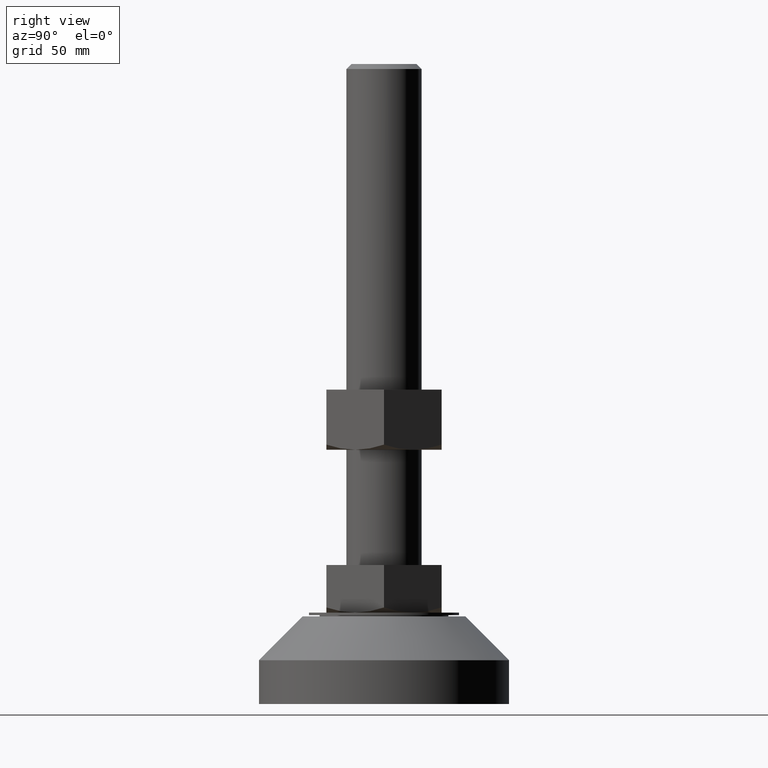
[diagram: clean part render]
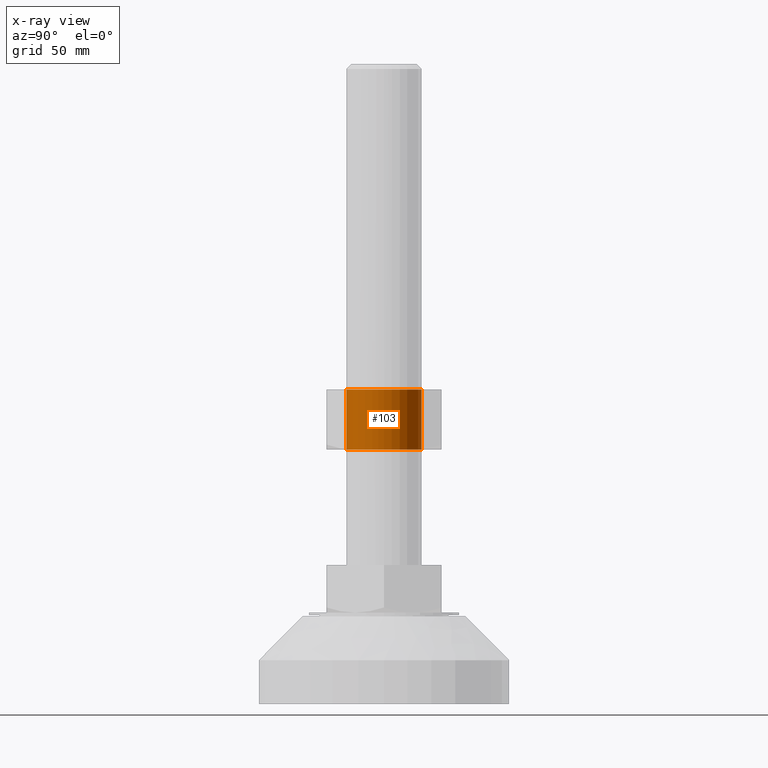
[diagram: x-ray — body ghosted, one internal face saturated and labeled with its STEP entity id]
A machine part, right view, then the same camera in x-ray: the body is ghosted and one INTERNAL B-rep face — a face not visible from any outside direction — is saturated and labeled: STEP entity #103.
In plain terms, the highlighted face is a freeform B-spline surface patch.
Its self-contained STEP definition (entity closure, byte-faithful):
#5=CARTESIAN_POINT('',(-0.915728093022528,-14.972021976327889,100.900000000000010));
#6=CARTESIAN_POINT('',(14.056293883305472,-15.887750069350739,100.900000000000010));
#7=CARTESIAN_POINT('',(14.972021976328330,-0.915728093022741,100.900000000000010));
#8=CARTESIAN_POINT('',(15.887750069351180,14.056293883305258,100.900000000000010));
#9=CARTESIAN_POINT('',(0.915728093023182,14.972021976328110,100.900000000000010));
#10=CARTESIAN_POINT('',(-0.915728093022528,-14.972021976327889,126.114999999999990));
#11=CARTESIAN_POINT('',(14.056293883305472,-15.887750069350739,126.115000000000010));
#12=CARTESIAN_POINT('',(14.972021976328330,-0.915728093022741,126.114999999999990));
#13=CARTESIAN_POINT('',(15.887750069351180,14.056293883305258,126.115000000000010));
#14=CARTESIAN_POINT('',(0.915728093023182,14.972021976328110,126.114999999999990));
#22=(BOUNDED_SURFACE()B_SPLINE_SURFACE(2,1,((#5,#10),(#6,#11),(#7,#12),(#8,#13),(#9,#14)),.UNSPECIFIED.,.F.,.F.,.U.)B_SPLINE_SURFACE_WITH_KNOTS((3,2,3),(2,2),(0.0,24.852813742385688,49.705627484771377),(0.0,25.215000000000021),.UNSPECIFIED.)GEOMETRIC_REPRESENTATION_ITEM()RATIONAL_B_SPLINE_SURFACE(((1.0,1.0),(0.707106781186548,0.707106781186548),(1.0,1.0),(0.707106781186548,0.707106781186548),(1.0,1.0)))REPRESENTATION_ITEM('')SURFACE());
#23=CARTESIAN_POINT('',(-0.915728093184179,-14.972021976318000,125.500000000000000));
#24=VERTEX_POINT('',#23);
#25=CARTESIAN_POINT('',(15.000000000000330,1.136868E-013,125.500000000000000));
#26=VERTEX_POINT('',#25);
#27=CARTESIAN_POINT('',(-0.915728093184178,-14.972021976318002,125.500000000000070));
#28=CARTESIAN_POINT('',(-0.458291449559558,-14.999999999999890,125.500000000000000));
#29=CARTESIAN_POINT('',(3.268497E-013,-14.999999999999890,125.500000000000000));
#30=CARTESIAN_POINT('',(15.000000000000323,-14.999999999999885,125.500000000000000));
#31=CARTESIAN_POINT('',(15.000000000000330,1.136868E-013,125.500000000000000));
#39=(BOUNDED_CURVE()B_SPLINE_CURVE(2,(#27,#28,#29,#30,#31),.UNSPECIFIED.,.F.,.U.)B_SPLINE_CURVE_WITH_KNOTS((3,2,3),(0.239332962240105,0.250000000000000,0.500000000000000),.UNSPECIFIED.)CURVE()GEOMETRIC_REPRESENTATION_ITEM()RATIONAL_B_SPLINE_CURVE((0.976072041669209,0.987502787901199,1.0,0.707106781186547,1.0))REPRESENTATION_ITEM(''));
#40=EDGE_CURVE('',#24,#26,#39,.T.);
#41=ORIENTED_EDGE('',*,*,#40,.T.);
#42=CARTESIAN_POINT('',(0.915728093184836,14.972021976318230,125.500000000000000));
#43=VERTEX_POINT('',#42);
#44=CARTESIAN_POINT('',(15.000000000000330,1.136868E-013,125.500000000000000));
#45=CARTESIAN_POINT('',(15.000000000000329,14.110591003432894,125.500000000000000));
#46=CARTESIAN_POINT('',(0.915728093184839,14.972021976318231,125.500000000000000));
#54=(BOUNDED_CURVE()B_SPLINE_CURVE(2,(#44,#45,#46),.UNSPECIFIED.,.F.,.U.)B_SPLINE_CURVE_WITH_KNOTS((3,3),(0.500000000000000,0.739332962240105),.UNSPECIFIED.)CURVE()GEOMETRIC_REPRESENTATION_ITEM()RATIONAL_B_SPLINE_CURVE((1.0,0.719603993285348,0.976072041669209))REPRESENTATION_ITEM(''));
#55=EDGE_CURVE('',#26,#43,#54,.T.);
#56=ORIENTED_EDGE('',*,*,#55,.T.);
#57=CARTESIAN_POINT('',(0.915728093184831,14.972021976318230,101.500000000000000));
#58=VERTEX_POINT('',#57);
#59=CARTESIAN_POINT('',(0.915728093184831,14.972021976318230,101.500000000000000));
#60=CARTESIAN_POINT('',(0.915728093184836,14.972021976318230,125.500000000000000));
#61=QUASI_UNIFORM_CURVE('',1,(#59,#60),.UNSPECIFIED.,.F.,.U.);
#62=EDGE_CURVE('',#58,#43,#61,.T.);
#63=ORIENTED_EDGE('',*,*,#62,.F.);
#64=CARTESIAN_POINT('',(15.000000000000330,1.136868E-013,101.500000000000000));
#65=VERTEX_POINT('',#64);
#66=CARTESIAN_POINT('',(15.000000000000330,1.136868E-013,101.500000000000000));
#67=CARTESIAN_POINT('',(15.000000000000330,14.110591003432909,101.500000000000000));
#68=CARTESIAN_POINT('',(0.915728093184829,14.972021976318240,101.500000000000010));
#76=(BOUNDED_CURVE()B_SPLINE_CURVE(2,(#66,#67,#68),.UNSPECIFIED.,.F.,.U.)B_SPLINE_CURVE_WITH_KNOTS((3,3),(0.500000000000000,0.739332962240105),.UNSPECIFIED.)CURVE()GEOMETRIC_REPRESENTATION_ITEM()RATIONAL_B_SPLINE_CURVE((1.0,0.719603993285348,0.976072041669209))REPRESENTATION_ITEM(''));
#77=EDGE_CURVE('',#65,#58,#76,.T.);
#78=ORIENTED_EDGE('',*,*,#77,.F.);
#79=CARTESIAN_POINT('',(-0.915728093184179,-14.972021976318000,101.500000000000000));
#80=VERTEX_POINT('',#79);
#81=CARTESIAN_POINT('',(-0.915728093184178,-14.972021976318002,101.499999999999990));
#82=CARTESIAN_POINT('',(-0.458291449559558,-14.999999999999890,101.499999999999970));
#83=CARTESIAN_POINT('',(3.268497E-013,-14.999999999999890,101.500000000000000));
#84=CARTESIAN_POINT('',(15.000000000000323,-14.999999999999885,101.500000000000000));
#85=CARTESIAN_POINT('',(15.000000000000330,1.136868E-013,101.500000000000000));
#93=(BOUNDED_CURVE()B_SPLINE_CURVE(2,(#81,#82,#83,#84,#85),.UNSPECIFIED.,.F.,.U.)B_SPLINE_CURVE_WITH_KNOTS((3,2,3),(0.239332962240105,0.250000000000000,0.500000000000000),.UNSPECIFIED.)CURVE()GEOMETRIC_REPRESENTATION_ITEM()RATIONAL_B_SPLINE_CURVE((0.976072041669209,0.987502787901199,1.0,0.707106781186547,1.0))REPRESENTATION_ITEM(''));
#94=EDGE_CURVE('',#80,#65,#93,.T.);
#95=ORIENTED_EDGE('',*,*,#94,.F.);
#96=CARTESIAN_POINT('',(-0.915728093184179,-14.972021976318000,101.500000000000000));
#97=CARTESIAN_POINT('',(-0.915728093184179,-14.972021976318000,125.500000000000000));
#98=QUASI_UNIFORM_CURVE('',1,(#96,#97),.UNSPECIFIED.,.F.,.U.);
#99=EDGE_CURVE('',#80,#24,#98,.T.);
#100=ORIENTED_EDGE('',*,*,#99,.T.);
#101=EDGE_LOOP('',(#41,#56,#63,#78,#95,#100));
#102=FACE_OUTER_BOUND('',#101,.T.);
#103=ADVANCED_FACE('',(#102),#22,.F.);